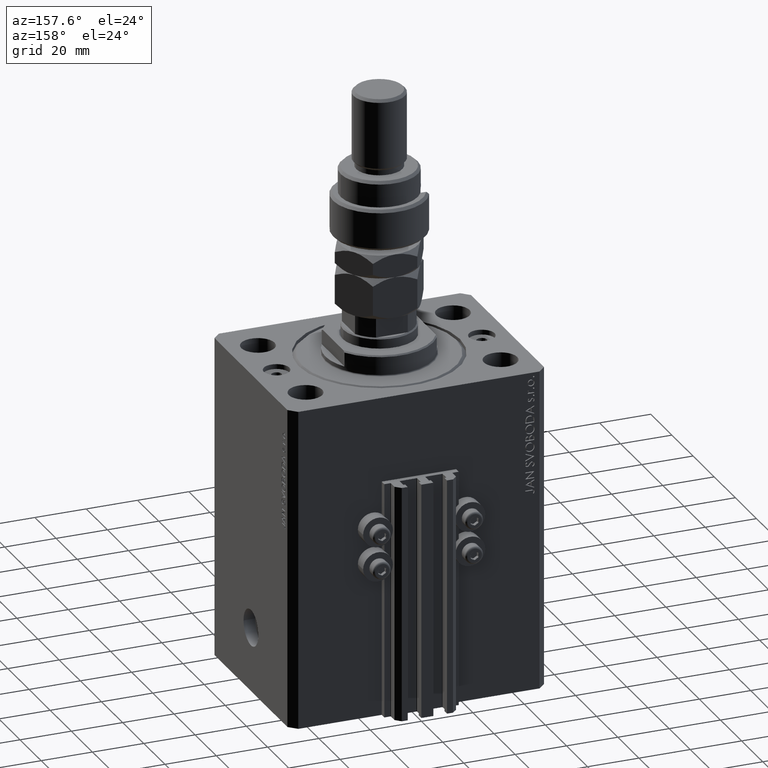
[diagram: clean part render]
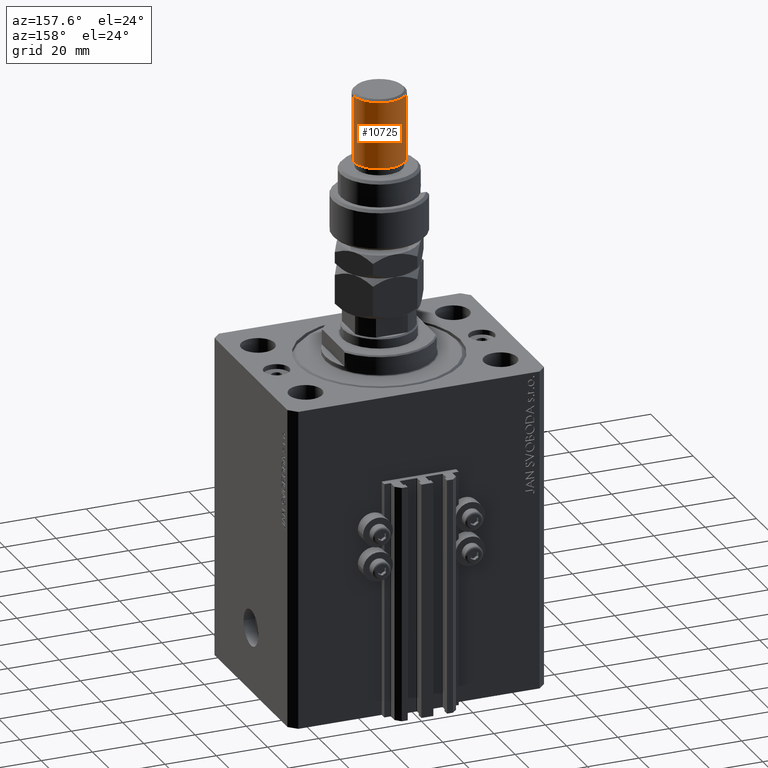
[diagram: same view with one face highlighted and labeled with its STEP entity id]
A machine part, auxiliary view. The second image highlights one B-rep face of the part: STEP entity #10725.
In plain terms, the highlighted cylindrical surface (edge-blend (fillet) strip) has radius 10 mm, axis along (-0, -0, -1).
Its self-contained STEP definition (entity closure, byte-faithful):
#664 = CARTESIAN_POINT ( 'NONE',  ( 0.000000000000000000, 0.000000000000000000, 54.99999999999998579 ) ) ;
#5738 = AXIS2_PLACEMENT_3D ( 'NONE', #664, #11315, #39150 ) ;
#6552 = AXIS2_PLACEMENT_3D ( 'NONE', #22799, #18248, #34433 ) ;
#9503 = AXIS2_PLACEMENT_3D ( 'NONE', #13897, #24562, #39996 ) ;
#10212 = VERTEX_POINT ( 'NONE', #47564 ) ;
#10725 = ADVANCED_FACE ( 'NONE', ( #42034 ), #22303, .T. ) ;
#10832 = EDGE_CURVE ( 'NONE', #30770, #15486, #30652, .T. ) ;
#11315 = DIRECTION ( 'NONE',  ( 0.000000000000000000, 0.000000000000000000, -1.000000000000000000 ) ) ;
#13897 = CARTESIAN_POINT ( 'NONE',  ( 0.000000000000000000, 0.000000000000000000, 29.00000000000000711 ) ) ;
#14060 = LINE ( 'NONE', #22194, #15191 ) ;
#15191 = VECTOR ( 'NONE', #48520, 1000.000000000000000 ) ;
#15486 = VERTEX_POINT ( 'NONE', #32665 ) ;
#17710 = ORIENTED_EDGE ( 'NONE', *, *, #33529, .T. ) ;
#18248 = DIRECTION ( 'NONE',  ( -0.000000000000000000, -0.000000000000000000, -1.000000000000000000 ) ) ;
#21114 = ORIENTED_EDGE ( 'NONE', *, *, #45632, .T. ) ;
#22194 = CARTESIAN_POINT ( 'NONE',  ( -10.00000000000000000, 0.000000000000000000, 56.00000000000000711 ) ) ;
#22303 = CYLINDRICAL_SURFACE ( 'NONE', #6552, 10.00000000000000000 ) ;
#22489 = CIRCLE ( 'NONE', #9503, 10.00000000000000000 ) ;
#22799 = CARTESIAN_POINT ( 'NONE',  ( 0.000000000000000000, 0.000000000000000000, 56.00000000000000711 ) ) ;
#22904 = CARTESIAN_POINT ( 'NONE',  ( -10.00000000000000000, 0.000000000000000000, 54.99999999999998579 ) ) ;
#24562 = DIRECTION ( 'NONE',  ( -0.000000000000000000, -0.000000000000000000, 1.000000000000000000 ) ) ;
#26115 = CARTESIAN_POINT ( 'NONE',  ( 10.00000000000000000, 1.224646799147353256E-15, 56.00000000000000711 ) ) ;
#26865 = DIRECTION ( 'NONE',  ( -0.000000000000000000, -0.000000000000000000, -1.000000000000000000 ) ) ;
#30652 = LINE ( 'NONE', #26115, #41353 ) ;
#30770 = VERTEX_POINT ( 'NONE', #45950 ) ;
#32665 = CARTESIAN_POINT ( 'NONE',  ( 10.00000000000000000, 1.224646799147353256E-15, 29.00000000000000711 ) ) ;
#32811 = VERTEX_POINT ( 'NONE', #22904 ) ;
#33529 = EDGE_CURVE ( 'NONE', #32811, #30770, #34869, .T. ) ;
#34433 = DIRECTION ( 'NONE',  ( -1.000000000000000000, 0.000000000000000000, 0.000000000000000000 ) ) ;
#34869 = CIRCLE ( 'NONE', #5738, 10.00000000000000000 ) ;
#38824 = ORIENTED_EDGE ( 'NONE', *, *, #48643, .F. ) ;
#39150 = DIRECTION ( 'NONE',  ( 1.000000000000000000, 0.000000000000000000, 0.000000000000000000 ) ) ;
#39996 = DIRECTION ( 'NONE',  ( 1.000000000000000000, 0.000000000000000000, 0.000000000000000000 ) ) ;
#41353 = VECTOR ( 'NONE', #26865, 1000.000000000000000 ) ;
#41839 = EDGE_LOOP ( 'NONE', ( #17710, #43945, #21114, #38824 ) ) ;
#42034 = FACE_OUTER_BOUND ( 'NONE', #41839, .T. ) ;
#43945 = ORIENTED_EDGE ( 'NONE', *, *, #10832, .T. ) ;
#45632 = EDGE_CURVE ( 'NONE', #15486, #10212, #22489, .T. ) ;
#45950 = CARTESIAN_POINT ( 'NONE',  ( 10.00000000000000000, 1.224646799147353256E-15, 54.99999999999998579 ) ) ;
#47564 = CARTESIAN_POINT ( 'NONE',  ( -10.00000000000000000, 0.000000000000000000, 29.00000000000000711 ) ) ;
#48520 = DIRECTION ( 'NONE',  ( -0.000000000000000000, -0.000000000000000000, -1.000000000000000000 ) ) ;
#48643 = EDGE_CURVE ( 'NONE', #32811, #10212, #14060, .T. ) ;